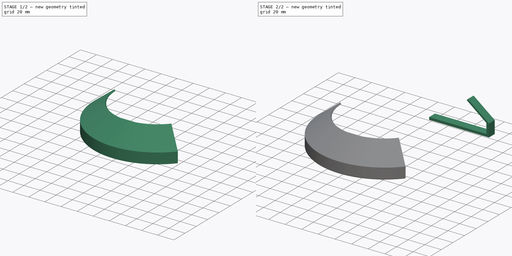
[diagram: build sequence overview — one tinted view per stage of 2, left to right]
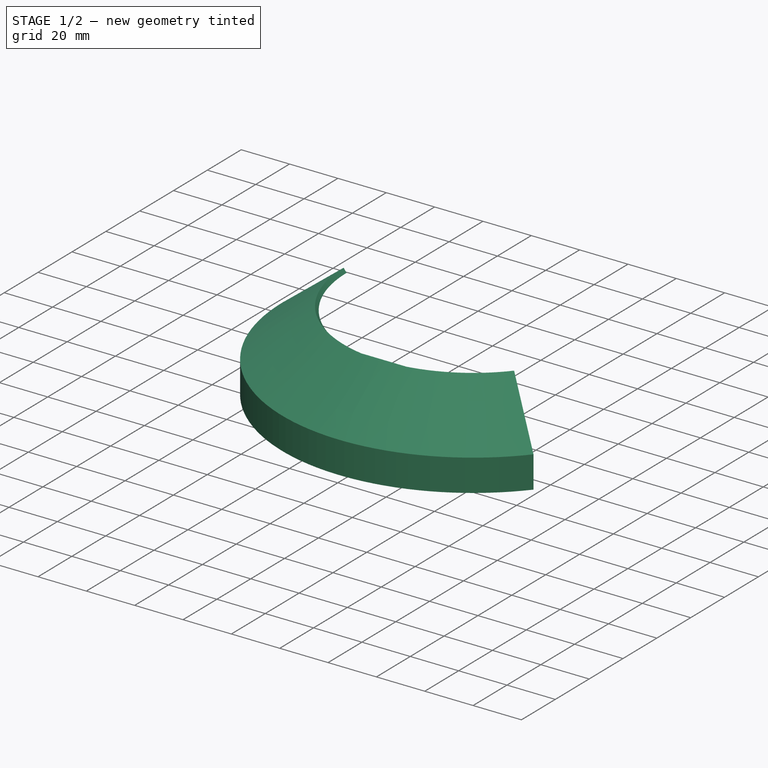
[diagram: stage 1 of 2 — iso view after this stage's code; geometry added in this stage tinted green]
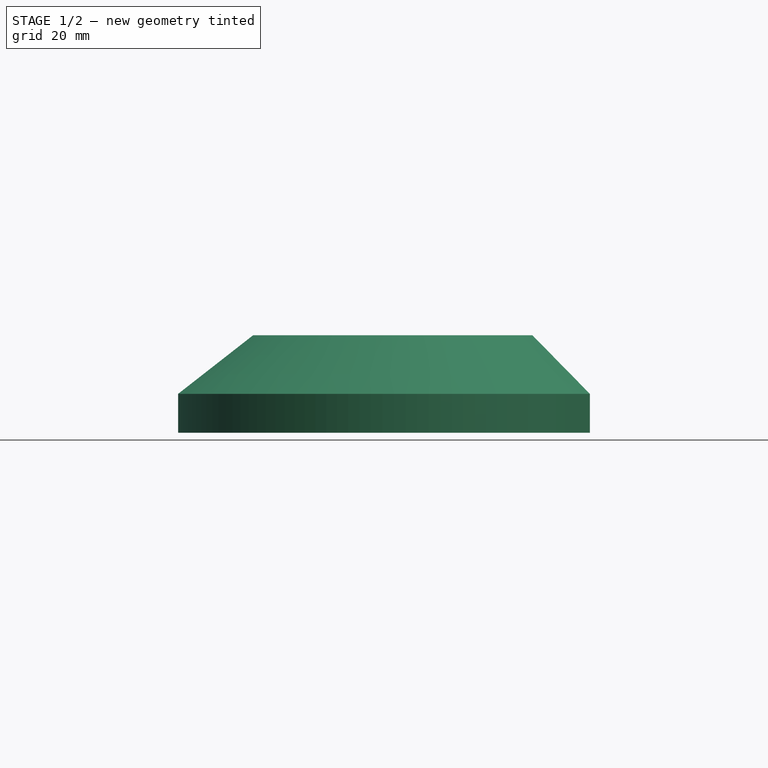
[diagram: stage 1 of 2 — front view after this stage's code; geometry added in this stage tinted green]
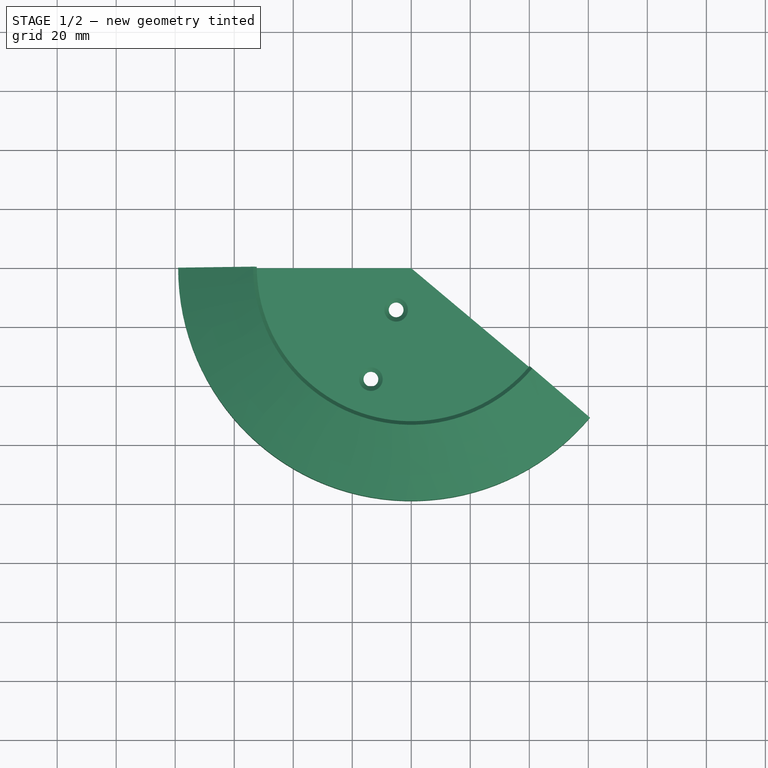
[diagram: stage 1 of 2 — top view after this stage's code; geometry added in this stage tinted green]
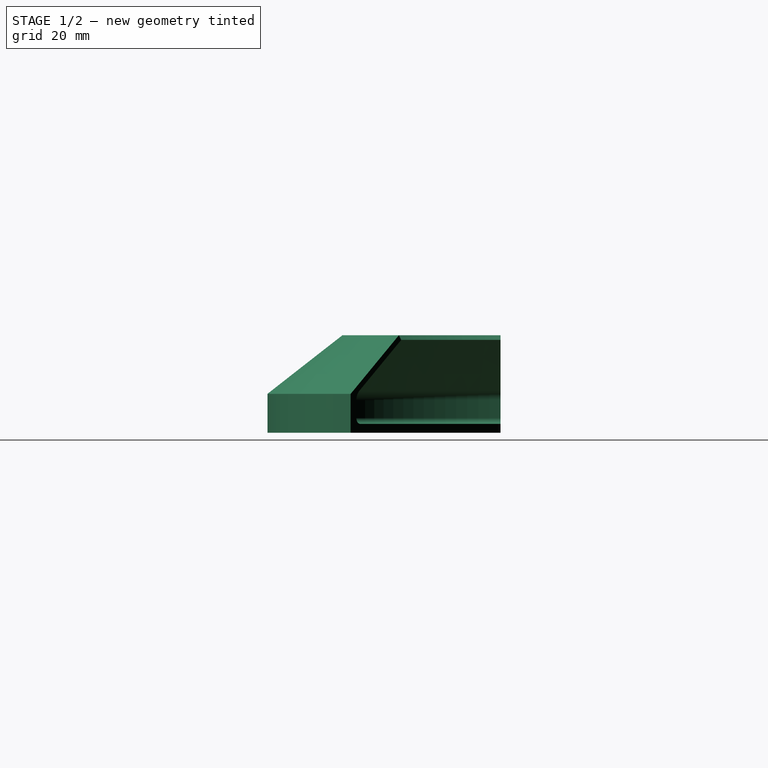
[diagram: stage 1 of 2 — right view after this stage's code; geometry added in this stage tinted green]
FCSTD DOCUMENT  (FreeCAD 1.2R20260526 (Git shallow))
Label: suction cup storage
License: All rights reserved
LicenseURL: http://en.wikipedia.org/wiki/All_rights_reserved
objects: Sketcher::SketchObject×3, PartDesign::Body×2, App::Point×2, PartDesign::Pad×1, PartDesign::Revolution×1, PartDesign::Hole×1, PartDesign::Chamfer×1
note: 20 computed .brp shape members not serialized (recipe doc carries the construction recipe); baked Part::Feature solids carry a one-line shape summary decoded from their .brp

FEATURE [PartDesign::Body] Body001
  AllowCompound = false
  Group = -> [Sketch002,Pad]
  Origin = -> Origin001
  Tip = -> Pad
FEATURE [PartDesign::Revolution] Revolution
  Angle = 140
  Angle2 = 60
  Axis = (0,2e-16,1)
  Base = (0,0,0)
  FuseOrder = 0
  FuzzyTolerance = 0
  Placement = pos=(0,0,0) rot=(1,0,0;1.5708rad)
  Profile = -> Sketch
  ReferenceAxis = -> Sketch [V_Axis]
  Suppressed = false
  Type = 0
FEATURE [Sketcher::SketchObject] Sketch003
  ArcFitTolerance = 0
  AttachmentSupport = -> [Revolution]
  ExternalTypes = [0]
  FullyConstrained = true
  MakeInternals = false
  MapMode = 5
  Placement = pos=(0,7e-16,3) rot=(0,0,1;3.14159rad)
  sketch-geometry (3):
    g0: LineSegment [constr] StartX=0 StartY=0 StartZ=0 EndX=13.6808 EndY=37.5877 EndZ=0
    g1: Circle CenterX=13.6808 CenterY=37.5877 CenterZ=0 NormalX=0 NormalY=0 NormalZ=1 AngleXU=0 Radius=2.25
    g2: Circle CenterX=5.1303 CenterY=14.0954 CenterZ=0 NormalX=0 NormalY=0 NormalZ=1 AngleXU=0 Radius=2.25
  constraints (8):
    c: Coincident(g0,g-1)
    c: Angle(g-1,g0) = 1.22173
    c: Equal(g1,g2)
    c: Diameter(g1) = 4.5
    c: PointOnObject(g2,g0)
    c: Distance(g0,g2) = 15
    c: Coincident(g1,g0)
    c: Distance(g2,g0) = 25
FEATURE [PartDesign::Hole] Hole
  BaseFeature = -> Revolution
  BaseProfileType = 6
  CosmeticThread = false
  CustomThreadClearance = 0
  Depth = 25
  DepthType = 0
  Diameter = 5
  DrillForDepth = false
  DrillPoint = 1
  DrillPointAngle = 118
  FuzzyTolerance = 0
  HoleCutCountersinkAngle = 90
  HoleCutCustomValues = false
  HoleCutDepth = 4
  HoleCutDiameter = 8
  HoleCutType = 2
  ModelThread = false
  Placement = pos=(0,0,0) rot=(1,0,0;1.5708rad)
  Profile = -> Sketch003
  Suppressed = false
  Tapered = false
  TaperedAngle = 90
  ThreadClass = 0
  ThreadDepth = 25
  ThreadDepthType = 0
  ThreadDiameter = 4.166
  ThreadDirection = 0
  ThreadFit = 0
  ThreadSize = 6
  ThreadType = 3
  Threaded = false
  UseCustomThreadClearance = false
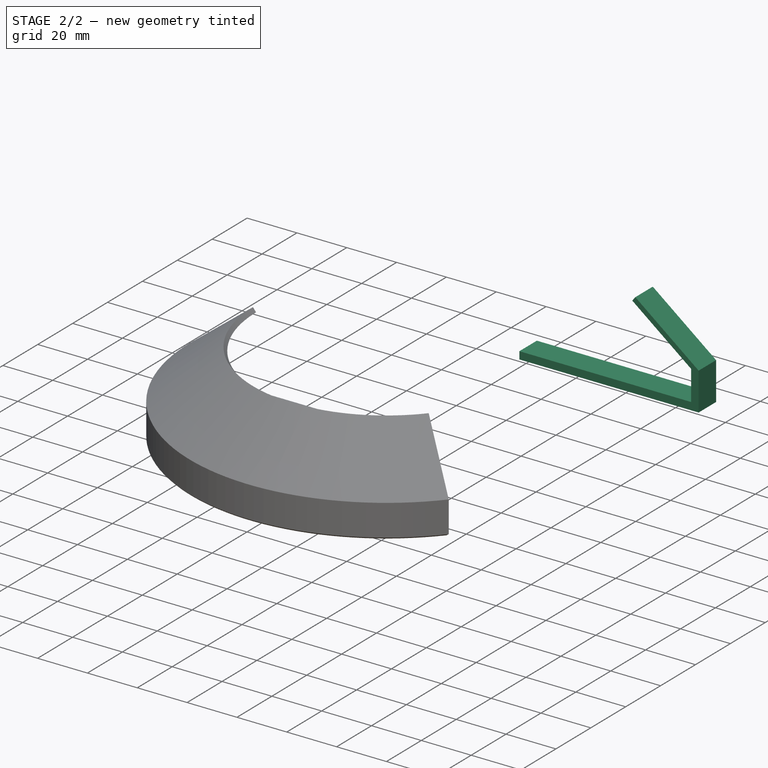
[diagram: stage 2 of 2 — iso view after this stage's code; geometry added in this stage tinted green]
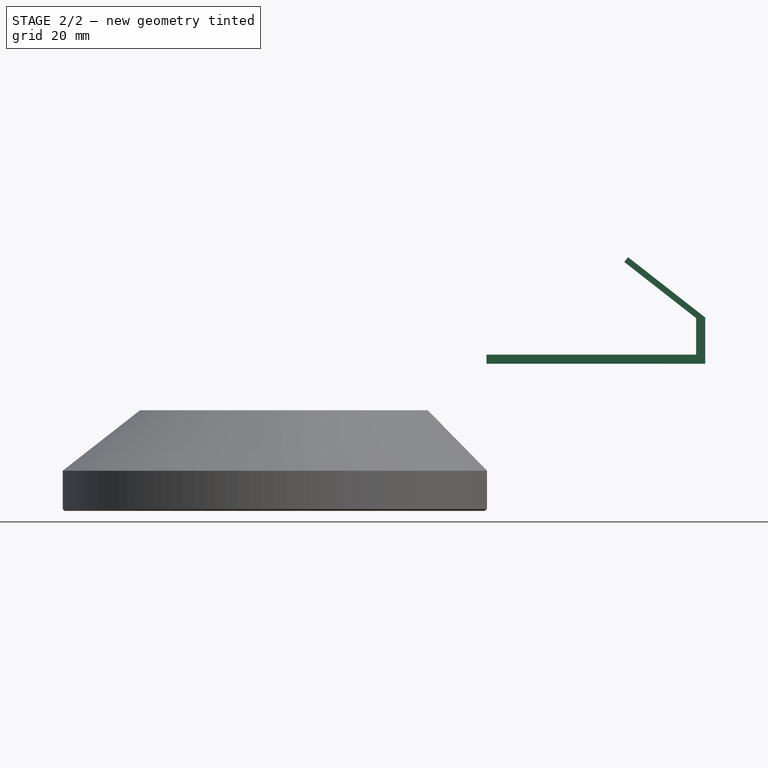
[diagram: stage 2 of 2 — front view after this stage's code; geometry added in this stage tinted green]
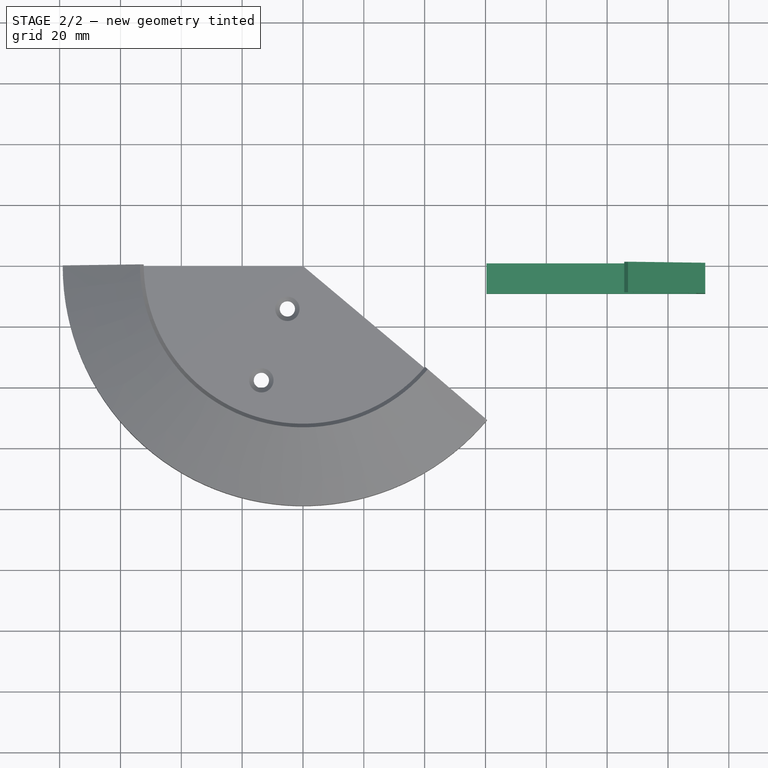
[diagram: stage 2 of 2 — top view after this stage's code; geometry added in this stage tinted green]
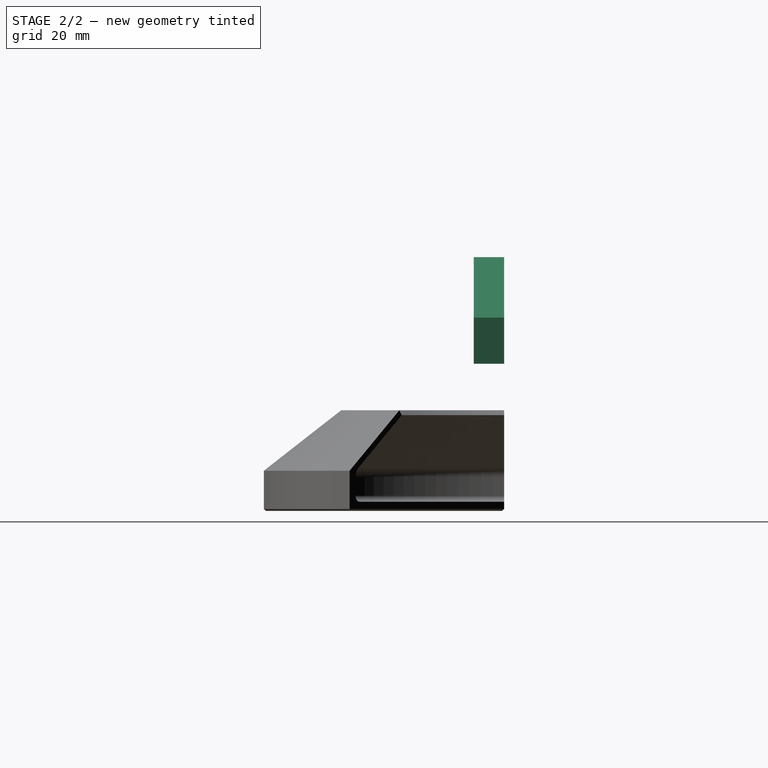
[diagram: stage 2 of 2 — right view after this stage's code; geometry added in this stage tinted green]
FEATURE [Sketcher::SketchObject] Sketch
  ArcFitTolerance = 0
  AttachmentSupport = -> [XZ_Plane]
  ExternalTypes = [0]
  FullyConstrained = true
  MakeInternals = false
  MapMode = 5
  Placement = pos=(0,0,0) rot=(1,0,0;1.5708rad)
  sketch-geometry (12):
    g0: LineSegment StartX=0 StartY=3 StartZ=0 EndX=-74 EndY=3 EndZ=0
    g1: LineSegment StartX=-76 StartY=5 StartZ=0 EndX=-76 EndY=11.0491 EndZ=0
    g2: LineSegment StartX=-74.4626 StartY=14.2011 StartZ=0 EndX=-52.3597 EndY=31.4698 EndZ=0
    g3: LineSegment StartX=-52.3597 StartY=31.4698 StartZ=0 EndX=-53.591 EndY=33.0459 EndZ=0
    g4: LineSegment StartX=-53.591 StartY=33.0459 StartZ=0 EndX=-79 EndY=13.1942 EndZ=0
    g5: LineSegment StartX=-79 StartY=13.1942 StartZ=0 EndX=-79 EndY=0 EndZ=0
    g6: LineSegment StartX=-79 StartY=0 StartZ=0 EndX=0 EndY=0 EndZ=0
    g7: LineSegment StartX=0 StartY=0 StartZ=0 EndX=0 EndY=3 EndZ=0
    g8: ArcOfCircle CenterX=-72 CenterY=11.0491 CenterZ=0 NormalX=0 NormalY=0 NormalZ=1 AngleXU=0 Radius=4 StartAngle=2.23402 EndAngle=3.14159
    g9: GeomPoint [constr] X=-76 Y=13 Z=0
    g10: ArcOfCircle CenterX=-74 CenterY=5 CenterZ=0 NormalX=0 NormalY=0 NormalZ=1 AngleXU=0 Radius=2 StartAngle=3.14159 EndAngle=4.71239
    g11: GeomPoint [constr] X=-76 Y=3 Z=0
  constraints (31):
    c: Horizontal(g0)
    c: Vertical(g1)
    c: Coincident(g2,g3)
    c: Coincident(g3,g4)
    c: Coincident(g4,g5)
    c: Coincident(g5,g6)
    c: Horizontal(g6)
    c: Coincident(g6,g7)
    c: Coincident(g7,g0)
    c: Parallel(g2,g4)
    c: Vertical(g5)
    c: Vertical(g7)
    c: Perpendicular(g2,g3)
    c: Distance(g3) = 2
    c: Distance(g2,g9) = 30
    c: DistanceY(g7,g7) = 3
    c: DistanceY(g11,g9) = 10
    c: DistanceX(g5,g11) = 3
    c: DistanceX(g11,g0) = 76
    c: Coincident(g6,g-1)
    c: PointOnObject(g9,g1)
    c: PointOnObject(g9,g2)
    c: Tangent(g1,g8) = 1.5708
    c: Tangent(g2,g8) = 1.5708
    c: PointOnObject(g11,g0)
    c: PointOnObject(g11,g1)
    c: Tangent(g0,g10) = 1.5708
    c: Tangent(g1,g10) = 1.5708
    c: Radius(g8) = 4
    c: Radius(g10) = 2
    c: Angle(g1,g2) = 2.23402
FEATURE [Sketcher::SketchObject] Sketch002
  ArcFitTolerance = 0
  AttachmentSupport = -> [XZ_Plane001]
  ExternalTypes = [0]
  FullyConstrained = false
  MakeInternals = false
  MapMode = 5
  Placement = pos=(0,0,0) rot=(1,0,0;1.5708rad)
  sketch-geometry (8):
    g0: LineSegment StartX=60.3246 StartY=51.3423 StartZ=0 EndX=129.272 EndY=51.3423 EndZ=0
    g1: LineSegment StartX=129.272 StartY=51.3423 StartZ=0 EndX=129.272 EndY=63.3423 EndZ=0
    g2: LineSegment StartX=129.272 StartY=63.3423 StartZ=0 EndX=105.631 EndY=81.8121 EndZ=0
    g3: LineSegment StartX=105.631 StartY=81.8121 StartZ=0 EndX=106.863 EndY=83.3881 EndZ=0
    g4: LineSegment StartX=106.863 StartY=83.3881 StartZ=0 EndX=132.272 EndY=63.5364 EndZ=0
    g5: LineSegment StartX=132.272 StartY=63.5364 StartZ=0 EndX=132.272 EndY=48.3423 EndZ=0
    g6: LineSegment StartX=132.272 StartY=48.3423 StartZ=0 EndX=60.3246 EndY=48.3423 EndZ=0
    g7: LineSegment StartX=60.3246 StartY=48.3423 StartZ=0 EndX=60.3246 EndY=51.3423 EndZ=0
  constraints (21):
    c: Horizontal(g0)
    c: Coincident(g0,g1)
    c: Vertical(g1)
    c: Coincident(g1,g2)
    c: Coincident(g2,g3)
    c: Coincident(g3,g4)
    c: Coincident(g4,g5)
    c: Coincident(g5,g6)
    c: Horizontal(g6)
    c: Coincident(g6,g7)
    c: Coincident(g7,g0)
    c: Parallel(g2,g4)
    c: Angle(g2,g0) = 0.663225
    c: Vertical(g5)
    c: DistanceY(g1,g1) = 12
    c: DistanceY(g7,g7) = 3
    c: Vertical(g7)
    c: DistanceX(g0,g5) = 3
    c: Perpendicular(g2,g3)
    c: Distance(g3) = 2
    c: Distance(g2) = 30
FEATURE [PartDesign::Pad] Pad
  Direction = (0,-1,2e-16)
  FuzzyTolerance = 0
  Length = 10
  Length2 = 10
  Placement = pos=(0,0,0) rot=(1,0,0;1.5708rad)
  Profile = -> Sketch002
  ReferenceAxis = -> Sketch002 [N_Axis]
  SideType = 0
  Suppressed = false
  Type = 0
  Type2 = 0
FEATURE [App::Point] Origin002  label="Origin-Point"
  Role = Origin
FEATURE [App::Point] Origin003  label="Origin-Point"
  Role = Origin
FEATURE [PartDesign::Chamfer] Chamfer
  Angle = 45
  Base = -> Hole [Face9]
  BaseFeature = -> Hole
  ChamferType = 0
  FlipDirection = false
  FuzzyTolerance = 0
  Placement = pos=(0,0,0) rot=(1,0,0;1.5708rad)
  Refine = true
  Size = 0.6
  Size2 = 1
  SupportTransform = false
  Suppressed = false
  UseAllEdges = false
FEATURE [PartDesign::Body] Body
  AllowCompound = false
  Group = -> [Sketch,Revolution,Sketch003,Hole,Chamfer]
  Origin = -> Origin
  Tip = -> Chamfer
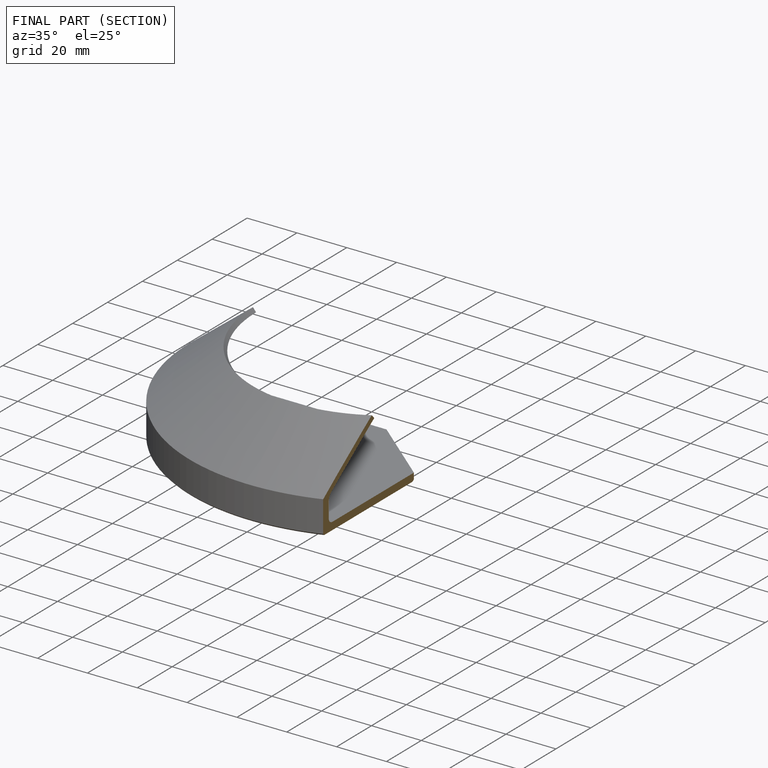
[diagram: finished part — half-section view (interior)]
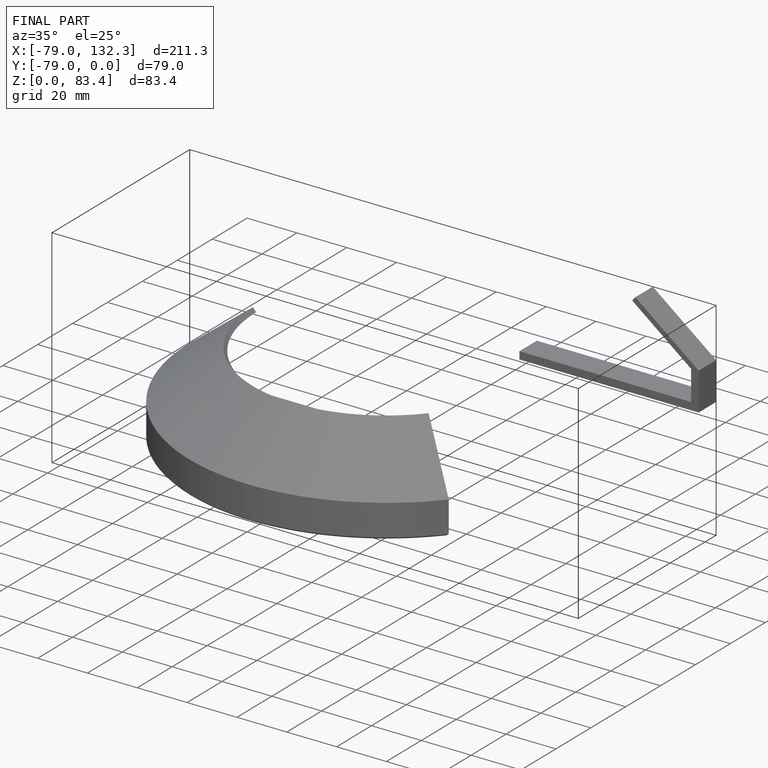
[diagram: finished part — iso view with bounding-box wireframe]
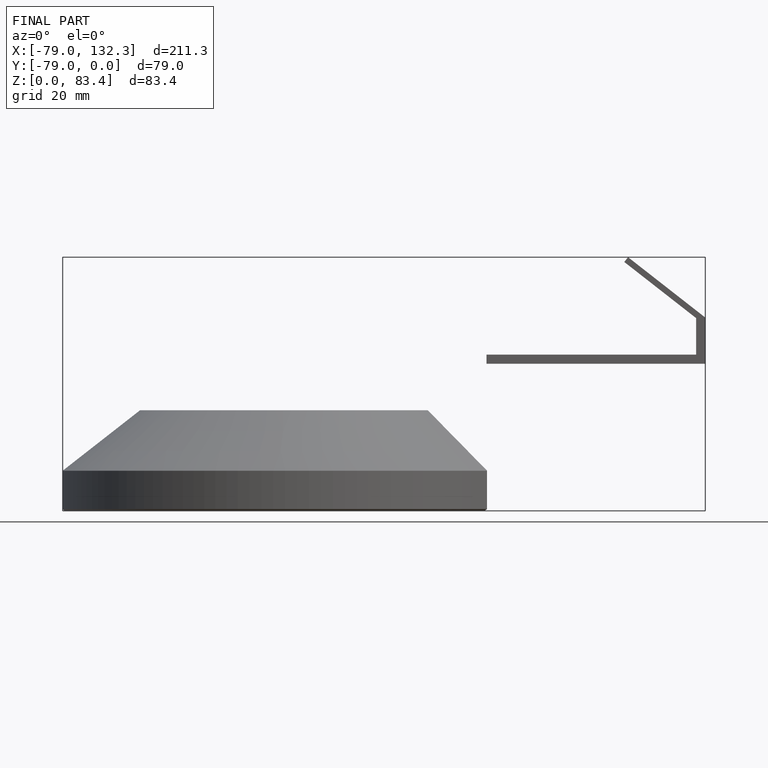
[diagram: finished part — front view with bounding-box wireframe]
